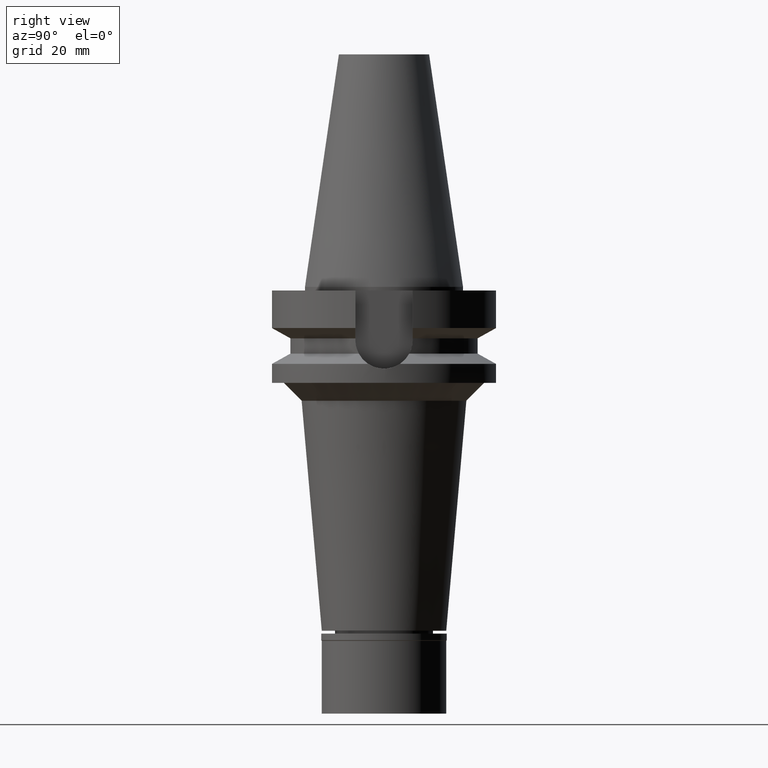
[diagram: clean part render]
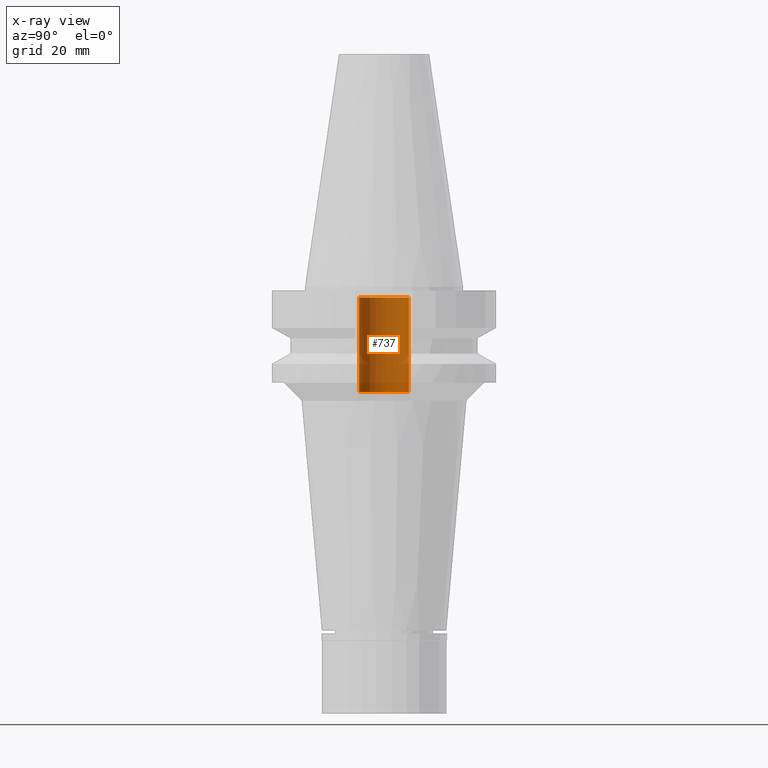
[diagram: x-ray — body ghosted, one internal face saturated and labeled with its STEP entity id]
A machine part, right view, then the same camera in x-ray: the body is ghosted and one INTERNAL B-rep face — a face not visible from any outside direction — is saturated and labeled: STEP entity #737.
In plain terms, the highlighted cylindrical surface (edge-blend (fillet) strip) has radius 7 mm, axis along (0, 0, -1).
Its self-contained STEP definition (entity closure, byte-faithful):
#14 = DIRECTION ( 'NONE',  ( 0.0000000000000000000, 0.0000000000000000000, -1.000000000000000000 ) ) ;
#17 = CIRCLE ( 'NONE', #3118, 7.000000000000000000 ) ;
#22 = VERTEX_POINT ( 'NONE', #942 ) ;
#249 = CYLINDRICAL_SURFACE ( 'NONE', #713, 7.000000000000000000 ) ;
#309 = CARTESIAN_POINT ( 'NONE',  ( 0.0000000000000000000, 7.000000000000000000, -29.60000000000000142 ) ) ;
#356 = DIRECTION ( 'NONE',  ( 0.0000000000000000000, 0.0000000000000000000, -1.000000000000000000 ) ) ;
#402 = AXIS2_PLACEMENT_3D ( 'NONE', #2341, #356, #1571 ) ;
#422 = VECTOR ( 'NONE', #3025, 1000.000000000000000 ) ;
#603 = ORIENTED_EDGE ( 'NONE', *, *, #2900, .T. ) ;
#713 = AXIS2_PLACEMENT_3D ( 'NONE', #1227, #14, #1954 ) ;
#737 = ADVANCED_FACE ( 'NONE', ( #991 ), #249, .F. ) ;
#849 = CARTESIAN_POINT ( 'NONE',  ( 0.0000000000000000000, 7.000000000000000000, -3.000000000000000000 ) ) ;
#942 = CARTESIAN_POINT ( 'NONE',  ( 0.0000000000000000000, -7.000000000000000000, -3.000000000000000000 ) ) ;
#991 = FACE_OUTER_BOUND ( 'NONE', #1627, .T. ) ;
#1070 = DIRECTION ( 'NONE',  ( 0.0000000000000000000, 0.0000000000000000000, 1.000000000000000000 ) ) ;
#1071 = EDGE_CURVE ( 'NONE', #2321, #2875, #1761, .T. ) ;
#1153 = ORIENTED_EDGE ( 'NONE', *, *, #1443, .T. ) ;
#1185 = DIRECTION ( 'NONE',  ( 0.0000000000000000000, 0.0000000000000000000, 1.000000000000000000 ) ) ;
#1227 = CARTESIAN_POINT ( 'NONE',  ( 0.0000000000000000000, 2.134987997294000229E-14, 74.33499999999999375 ) ) ;
#1443 = EDGE_CURVE ( 'NONE', #2875, #22, #17, .T. ) ;
#1571 = DIRECTION ( 'NONE',  ( 0.0000000000000000000, -1.000000000000000000, 0.0000000000000000000 ) ) ;
#1627 = EDGE_LOOP ( 'NONE', ( #1153, #2119, #603, #2193 ) ) ;
#1761 = LINE ( 'NONE', #309, #422 ) ;
#1771 = LINE ( 'NONE', #2735, #2158 ) ;
#1954 = DIRECTION ( 'NONE',  ( 0.0000000000000000000, -1.000000000000000000, 0.0000000000000000000 ) ) ;
#2119 = ORIENTED_EDGE ( 'NONE', *, *, #2237, .F. ) ;
#2158 = VECTOR ( 'NONE', #1070, 1000.000000000000000 ) ;
#2162 = CIRCLE ( 'NONE', #402, 7.000000000000000000 ) ;
#2193 = ORIENTED_EDGE ( 'NONE', *, *, #1071, .T. ) ;
#2237 = EDGE_CURVE ( 'NONE', #2428, #22, #1771, .T. ) ;
#2321 = VERTEX_POINT ( 'NONE', #2774 ) ;
#2341 = CARTESIAN_POINT ( 'NONE',  ( 0.0000000000000000000, 2.134987997294000229E-14, -29.60000000000000142 ) ) ;
#2422 = CARTESIAN_POINT ( 'NONE',  ( 0.0000000000000000000, -7.000000000000000000, -29.60000000000000142 ) ) ;
#2428 = VERTEX_POINT ( 'NONE', #2422 ) ;
#2649 = CARTESIAN_POINT ( 'NONE',  ( 0.0000000000000000000, 2.134987997294000229E-14, -3.000000000000000000 ) ) ;
#2735 = CARTESIAN_POINT ( 'NONE',  ( 0.0000000000000000000, -7.000000000000000000, -29.60000000000000142 ) ) ;
#2774 = CARTESIAN_POINT ( 'NONE',  ( 0.0000000000000000000, 7.000000000000000000, -29.60000000000000142 ) ) ;
#2875 = VERTEX_POINT ( 'NONE', #849 ) ;
#2900 = EDGE_CURVE ( 'NONE', #2428, #2321, #2162, .T. ) ;
#3025 = DIRECTION ( 'NONE',  ( 0.0000000000000000000, 0.0000000000000000000, 1.000000000000000000 ) ) ;
#3118 = AXIS2_PLACEMENT_3D ( 'NONE', #2649, #1185, #3130 ) ;
#3130 = DIRECTION ( 'NONE',  ( 0.0000000000000000000, 1.000000000000000000, 0.0000000000000000000 ) ) ;